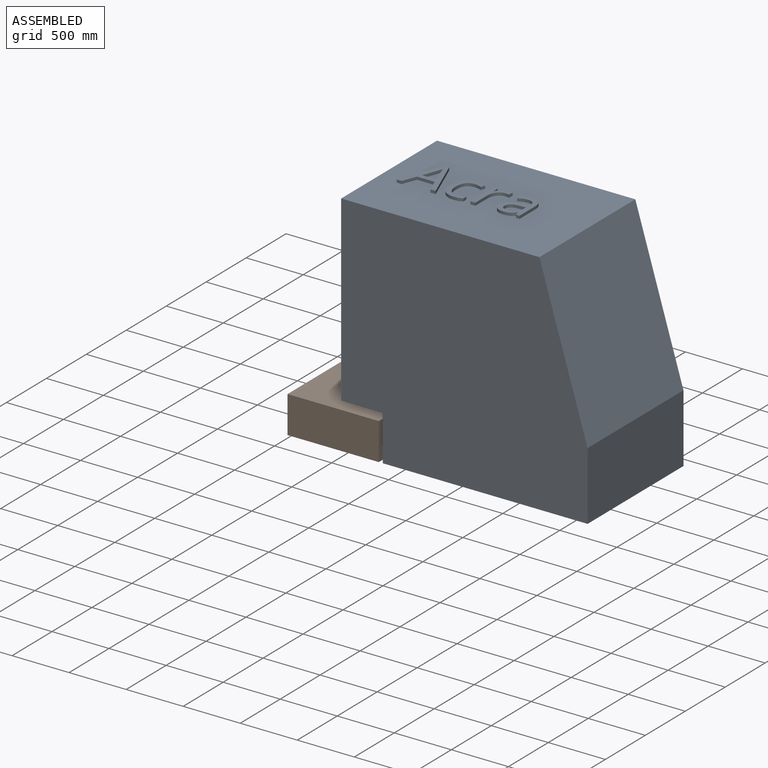
[diagram: assembled view]
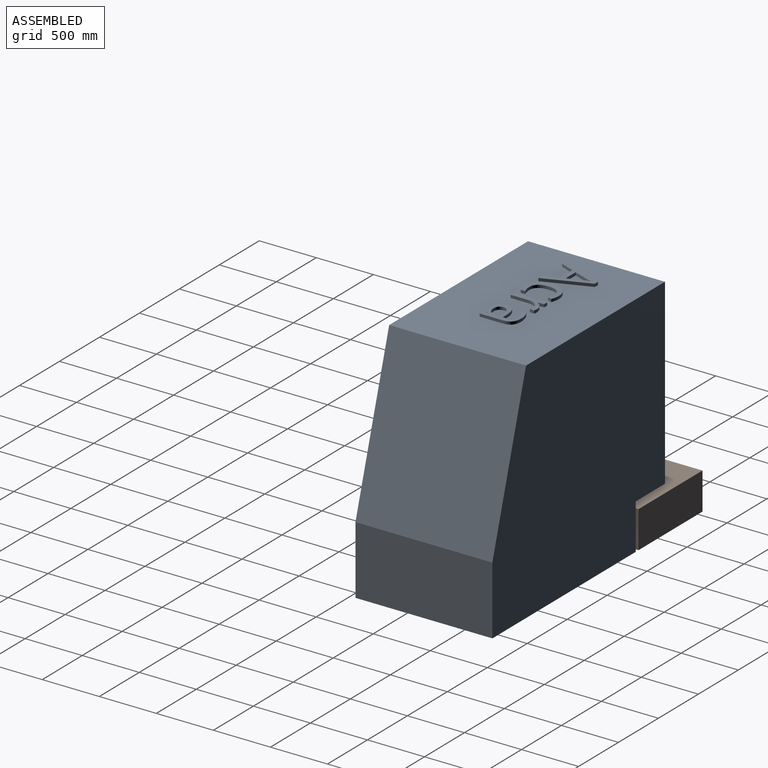
[diagram: assembled view, second angle]
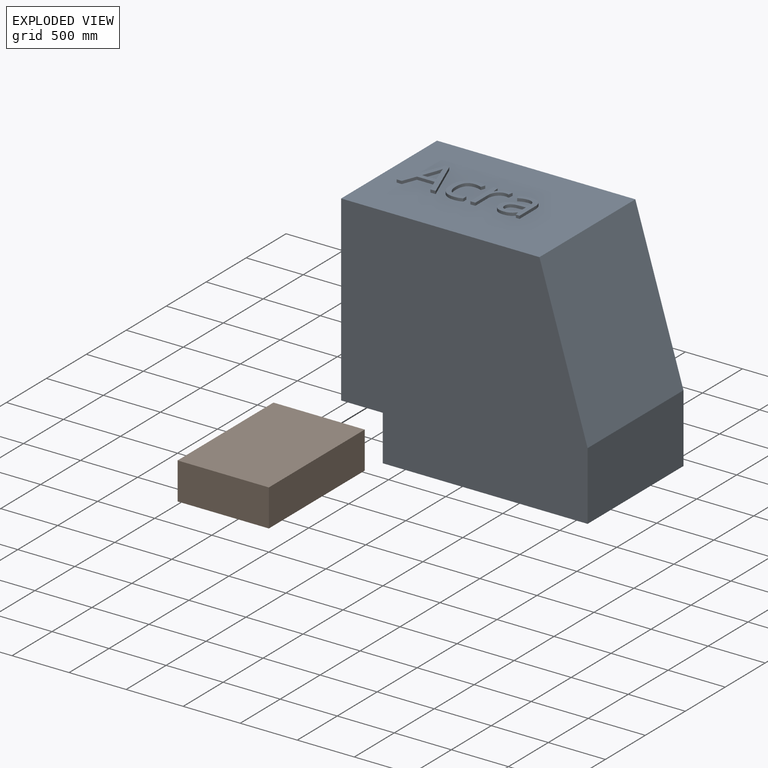
[diagram: exploded view]
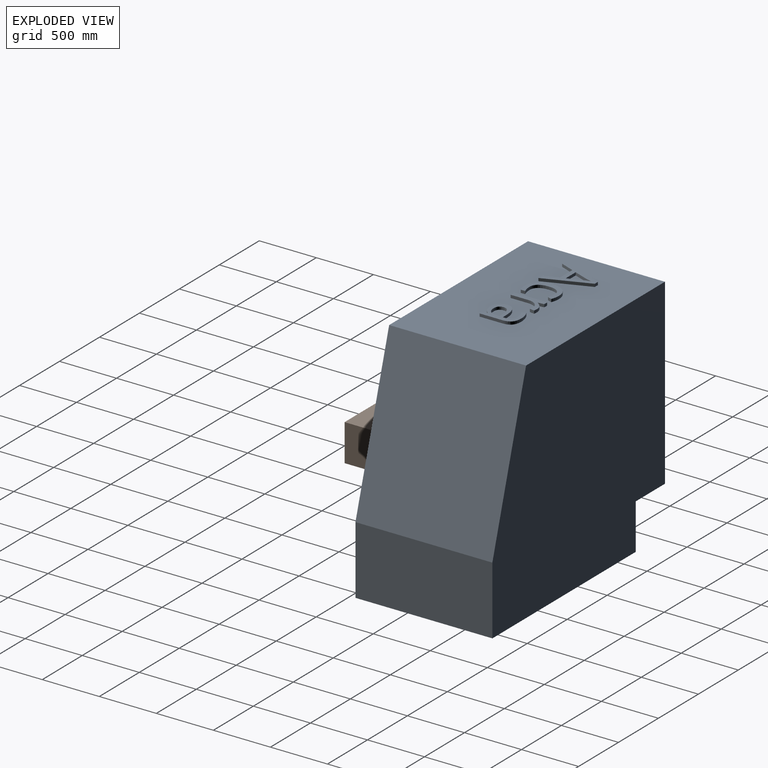
[diagram: exploded view, second angle]
ASSEMBLY  parts=2 mates=2
PART A: 83 faces, bbox 2160x1200x2025 mm
  f0: plane 1738.05x1200mm, normal (0,0,1), area 1951531mm2, adj f1,f4,f5,f6,f9,f10,f11,f12
  f1: plane 2160x2000mm, normal (0,-1,0), area 3878637.9mm2, adj f0,f2,f3,f5,f6,f7,f8
  f2: plane 1795x1200mm, normal (0,0,-1), area 2154000mm2, adj f1,f3,f4,f7
  f3: plane 1200x600mm, normal (1,0,0), area 720000mm2, adj f1,f2,f4,f6
  f4: plane 2160x2000mm, normal (0,1,0), area 3878637.9mm2, adj f0,f2,f3,f5,f6,f7,f8
  f5: plane 1600x1200mm, normal (-1,0,0), area 1920000mm2, adj f0,f1,f4,f8
  f6: plane 1400x1200mm, normal (0.96,0,0.29), area 1754643.9mm2, adj f0,f1,f3,f4
  f7: plane 1200x400mm, normal (-1,0,0), area 480000mm2, adj f1,f2,f4,f8
  f8: plane 1200x365mm, normal (0,0,-1), area 438000mm2, adj f1,f4,f5,f7
  f9: plane 46.49x25mm, normal (0,-1,0), area 1162.2mm2, adj f0,f10,f21,f22
  f10: plane 387.78x151.88mm, normal (0.93,0.36,0), area 10411.6mm2, adj f0,f9,f11,f22
  f11: plane 37.78x25mm, normal (0,1,0), area 944.5mm2, adj f0,f10,f12,f22
  f12: plane 387.78x152.64mm, normal (-0.93,0.37,0), area 10418.6mm2, adj f0,f11,f13,f22
  f13: plane 45.47x25mm, normal (0,-1,0), area 1136.8mm2, adj f0,f12,f14,f22
  f14: plane 122.81x47.5mm, normal (0.93,-0.36,0), area 3291.9mm2, adj f0,f13,f15,f22
  f15: plane 154.76x25mm, normal (0,-1,0), area 3868.9mm2, adj f0,f14,f21,f22
  f16: plane 124.92x25mm, normal (0,1,0), area 3123mm2, adj f17,f20,f22,f23
  f17: plane 119.68x45.39mm, normal (0.94,-0.35,0), area 3200mm2, adj f16,f18,f22,f23
  f18: extruded ~55.7x25mm, area 1454.2mm2, adj f17,f19,f22,f23
  f19: extruded ~55.7x25mm, area 1463.3mm2, adj f18,f20,f22,f23
  f20: plane 119.68x44.97mm, normal (-0.94,-0.35,0), area 3196.2mm2, adj f16,f19,f22,f23
  f21: plane 122.81x48.09mm, normal (-0.93,-0.36,0), area 3297.2mm2, adj f0,f9,f15,f22
  f22: plane 387.78x342.31mm, normal (0,0,1), area 38371.9mm2, adj f9,f10,f11,f12,f13,f14,f15,f16
  f23: plane 175.38x124.92mm, normal (0,0,1), area 10448.5mm2, adj f16,f17,f18,f19,f20
  f24: extruded ~73.11x25mm, area 1884.4mm2, adj f0,f25,f38,f39
  f25: plane 38.8x25mm, normal (1,0,0), area 969.9mm2, adj f0,f24,f26,f39
  f26: extruded ~74.21x25mm, area 1907.6mm2, adj f0,f25,f27,f39
  f27: extruded ~63.77x28.53mm, area 1815.5mm2, adj f0,f26,f28,f39
  f28: extruded ~81.86x25mm, area 2152.5mm2, adj f0,f27,f29,f39
  f29: extruded ~112.5x88.24mm, area 4084.7mm2, adj f0,f28,f30,f39
  f30: extruded ~30.34x25mm, area 766mm2, adj f0,f29,f31,f39
  f31: extruded ~31.7x25mm, area 829.1mm2, adj f0,f30,f32,f39
  f32: plane 37.19x25mm, normal (0.94,-0.34,0), area 988.6mm2, adj f0,f31,f33,f39
  f33: extruded ~32.71x25mm, area 861.9mm2, adj f0,f32,f34,f39
  f34: extruded ~41.75x25mm, area 1051.9mm2, adj f0,f33,f35,f39
  f35: extruded ~99.69x39.64mm, area 2768.9mm2, adj f0,f34,f36,f39
  f36: extruded ~112.24x35.03mm, area 3005.8mm2, adj f0,f35,f37,f39
  f37: extruded ~109.54x34.48mm, area 2936.4mm2, adj f0,f36,f38,f39
  f38: extruded ~97.37x38.71mm, area 2703.6mm2, adj f0,f24,f37,f39
  f39: plane 300.13x209.19mm, normal (0,0,1), area 22224.7mm2, adj f24,f25,f26,f27,f28,f29,f30,f31
  f40: extruded ~49.95x25mm, area 1326.4mm2, adj f0,f41,f52,f53
  f41: extruded ~43.57x38.8mm, area 1471.6mm2, adj f0,f40,f42,f53
  f42: plane 25x2.11mm, normal (0,1,0), area 52.8mm2, adj f0,f41,f43,f53
  f43: plane 53.59x25mm, normal (1,0.09,0), area 1345.6mm2, adj f0,f42,f44,f53
  f44: plane 36.18x25mm, normal (0,1,0), area 904.4mm2, adj f0,f43,f45,f53
  f45: plane 289.48x25mm, normal (-1,0,0), area 7237.1mm2, adj f0,f44,f46,f53
  f46: plane 43.87x25mm, normal (0,-1,0), area 1096.7mm2, adj f0,f45,f47,f53
  f47: plane 155.35x25mm, normal (1,0,0), area 3883.7mm2, adj f0,f46,f48,f53
  f48: extruded ~71.04x25mm, area 1925.3mm2, adj f0,f47,f49,f53
  f49: extruded ~60.09x28.53mm, area 1718.4mm2, adj f0,f48,f50,f53
  f50: extruded ~31.7x25mm, area 800.1mm2, adj f0,f49,f51,f53
  f51: plane 40.65x25mm, normal (0.99,-0.15,0), area 1027.7mm2, adj f0,f50,f52,f53
  f52: extruded ~34.57x25mm, area 869.5mm2, adj f0,f40,f51,f53
  f53: plane 294.81x166.67mm, normal (0,0,1), area 17475.6mm2, adj f40,f41,f42,f43,f44,f45,f46,f47
  f54: plane 32.54x25mm, normal (0,-1,0), area 813.5mm2, adj f0,f55,f80,f81
  f55: plane 197.61x25mm, normal (1,0,0), area 4940.2mm2, adj f0,f54,f56,f81
  f56: extruded ~73.66x25mm, area 2001.5mm2, adj f0,f55,f57,f81
  f57: extruded ~76.7x25mm, area 2047.8mm2, adj f0,f56,f58,f81
  f58: extruded ~51.18x25mm, area 1293.5mm2, adj f0,f57,f59,f81
  f59: extruded ~46.87x25mm, area 1259.8mm2, adj f0,f58,f60,f81
  f60: plane 33.55x25mm, normal (-0.93,-0.37,0), area 904.4mm2, adj f0,f59,f61,f81
  f61: extruded ~81.82x25mm, area 2136.7mm2, adj f0,f60,f62,f81
  f62: extruded ~46.91x25mm, area 1278.4mm2, adj f0,f61,f63,f81
  f63: extruded ~50.29x25mm, area 1338.5mm2, adj f0,f62,f64,f81
  f64: plane 25x18mm, normal (-1,0,0), area 450.1mm2, adj f0,f63,f65,f81
  f65: plane 49.11x25mm, normal (-0.03,1,0), area 1228.3mm2, adj f0,f64,f66,f81
  f66: extruded ~140.22x91.87mm, area 4708.9mm2, adj f0,f65,f67,f81
  f67: extruded ~63.14x25mm, area 1745.1mm2, adj f0,f66,f68,f81
  f68: extruded ~67.45x25mm, area 1817.6mm2, adj f0,f67,f69,f81
  f69: extruded ~53.8x25mm, area 1376.6mm2, adj f0,f68,f70,f81
  f70: extruded ~43.15x36.89mm, area 1432.3mm2, adj f0,f69,f71,f81
  f71: plane 25x2.11mm, normal (0,-1,0), area 52.8mm2, adj f0,f70,f80,f81
  f72: extruded ~40.23x25mm, area 1075.2mm2, adj f73,f79,f81,f82
  f73: extruded ~36.22x25mm, area 1006.5mm2, adj f72,f74,f81,f82
  f74: extruded ~44.75x25mm, area 1320.3mm2, adj f73,f75,f81,f82
  f75: extruded ~75.39x25mm, area 1947.7mm2, adj f74,f76,f81,f82
  f76: plane 43.87x25mm, normal (0.04,-1,0), area 1097.6mm2, adj f75,f77,f81,f82
  f77: plane 26.12x25mm, normal (-1,0,0), area 652.9mm2, adj f76,f78,f81,f82
  f78: extruded ~62.84x25mm, area 1724.6mm2, adj f77,f79,f81,f82
  f79: extruded ~64.36x25mm, area 1748mm2, adj f72,f78,f81,f82
  f80: plane 41.25x25mm, normal (-0.98,-0.21,0), area 1053.9mm2, adj f0,f54,f71,f81
  f81: plane 299.54x232.18mm, normal (0,0,1), area 32832mm2, adj f54,f55,f56,f57,f58,f59,f60,f61
  f82: plane 142.33x111.4mm, normal (0,0,1), area 12781.4mm2, adj f72,f73,f74,f75,f76,f77,f78,f79
PART B: 6 faces, bbox 800x1200x325 mm
  f0: plane 800x325mm, normal (0,1,0), area 260000mm2, adj f1,f3,f4,f5
  f1: plane 1200x325mm, normal (-1,0,0), area 390000mm2, adj f0,f2,f4,f5
  f2: plane 800x325mm, normal (0,-1,0), area 260000mm2, adj f1,f3,f4,f5
  f3: plane 1200x325mm, normal (1,0,0), area 390000mm2, adj f0,f2,f4,f5
  f4: plane 1200x800mm, normal (0,0,1), area 960000mm2, adj f0,f1,f2,f3
  f5: plane 1200x800mm, normal (0,0,-1), area 960000mm2, adj f0,f1,f2,f3
PLACE A t=(506.03,311.11,-338.18)mm
PLACE B t=(36.24,-888.89,-338.18)mm
MATE planar B.f2 <-> A.f1  axis (0,-1,0) through (436.24,-888.89,-175.68)mm
MATE planar B.f5 <-> A.f2  axis (0,0,-1) through (436.24,-288.89,-338.18)mm
